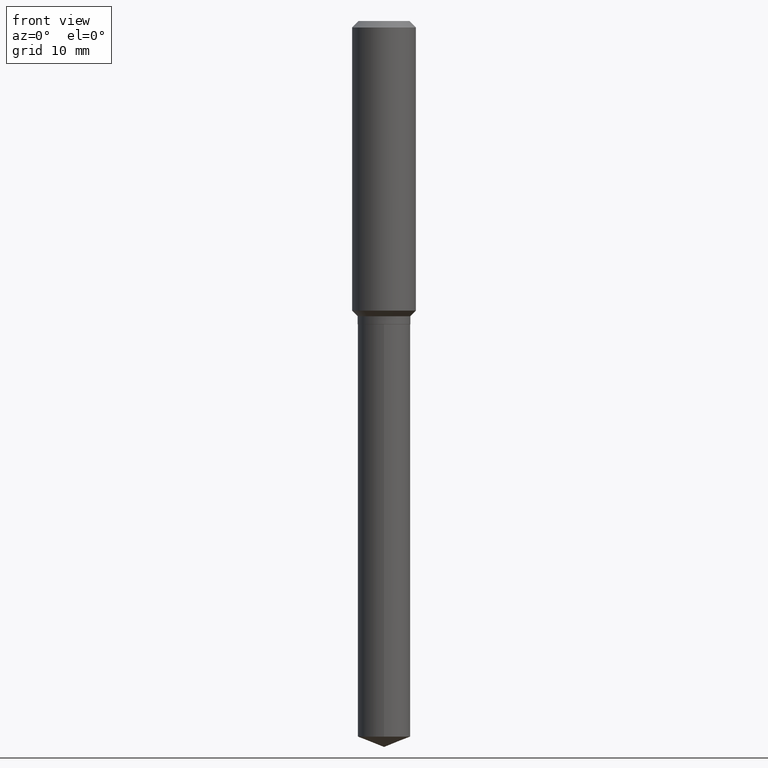
[diagram: clean part render]
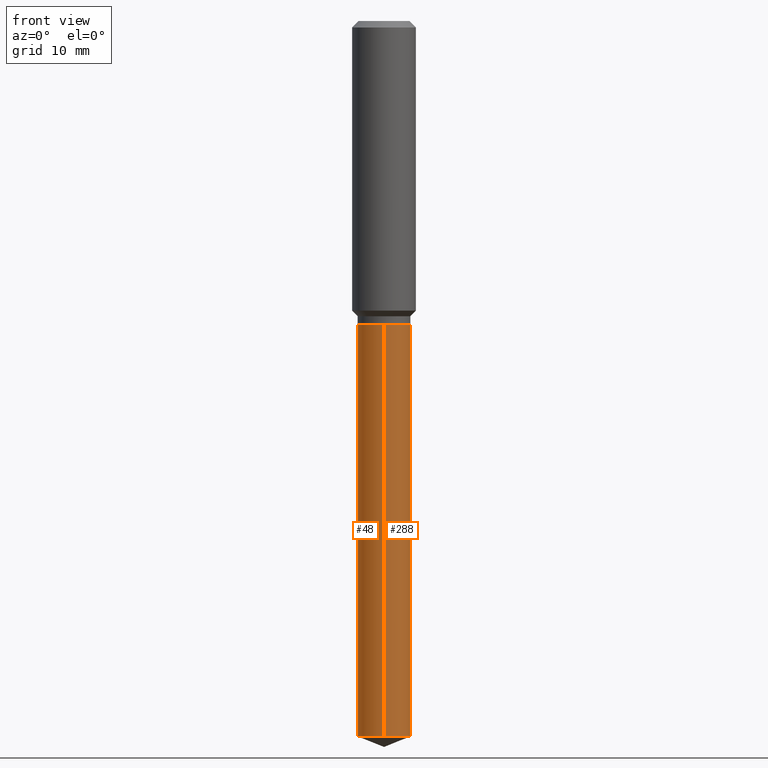
[diagram: same view with one multi-face feature highlighted, each face labeled with its STEP entity id]
A machine part, front view. The highlighted faces form ONE feature: a constant-radius fillet chain: 2 tangent blend faces with common blend radius 3.2995 mm. The faces share edges in the B-rep.
Their STEP definitions:
[1] entity #48 (Cylinder):
#7 = DIRECTION ( 'NONE',  ( -6.982962677686266711E-15, -1.000000000000000000, 4.206078512185163024E-15 ) ) ;
#10 = CARTESIAN_POINT ( 'NONE',  ( 8.636895204888756540E-29, -1.233144730051183123E-14, -3.531831029217620266 ) ) ;
#38 = DIRECTION ( 'NONE',  ( -2.445425864037539356E-29, 3.491542834442619101E-15, 1.000000000000000000 ) ) ;
#43 = DIRECTION ( 'NONE',  ( -6.982962677686266711E-15, -1.000000000000000000, 4.206078512185163024E-15 ) ) ;
#44 = AXIS2_PLACEMENT_3D ( 'NONE', #332, #248, #43 ) ;
#48 = ADVANCED_FACE ( 'NONE', ( #53 ), #173, .T. ) ;
#53 = FACE_OUTER_BOUND ( 'NONE', #486, .T. ) ;
#62 = DIRECTION ( 'NONE',  ( -6.982962677686266711E-15, -1.000000000000000000, 4.206078512185163024E-15 ) ) ;
#82 = ORIENTED_EDGE ( 'NONE', *, *, #125, .F. ) ;
#89 = DIRECTION ( 'NONE',  ( -2.445425864037539637E-29, 3.491542834442619495E-15, 1.000000000000000000 ) ) ;
#92 = AXIS2_PLACEMENT_3D ( 'NONE', #10, #207, #7 ) ;
#114 = VERTEX_POINT ( 'NONE', #270 ) ;
#116 = VECTOR ( 'NONE', #379, 39.37007874015748143 ) ;
#125 = EDGE_CURVE ( 'NONE', #114, #382, #258, .T. ) ;
#137 = AXIS2_PLACEMENT_3D ( 'NONE', #215, #89, #62 ) ;
#173 = CYLINDRICAL_SURFACE ( 'NONE', #44, 0.1298999999999999877 ) ;
#182 = VECTOR ( 'NONE', #38, 39.37007874015748143 ) ;
#200 = VERTEX_POINT ( 'NONE', #337 ) ;
#204 = LINE ( 'NONE', #427, #182 ) ;
#207 = DIRECTION ( 'NONE',  ( -2.445425864037539637E-29, 3.491542834442619495E-15, 1.000000000000000000 ) ) ;
#213 = VERTEX_POINT ( 'NONE', #224 ) ;
#215 = CARTESIAN_POINT ( 'NONE',  ( 3.659399521575438742E-29, -5.224652675444883351E-15, -1.496400000000000174 ) ) ;
#224 = CARTESIAN_POINT ( 'NONE',  ( -9.070868518314093100E-16, -0.1299000000000052057, -1.496399999999999730 ) ) ;
#248 = DIRECTION ( 'NONE',  ( -2.445425864037539637E-29, 3.491542834442619495E-15, 1.000000000000000000 ) ) ;
#258 = LINE ( 'NONE', #354, #116 ) ;
#262 = ORIENTED_EDGE ( 'NONE', *, *, #426, .F. ) ;
#270 = CARTESIAN_POINT ( 'NONE',  ( 9.229950137524560399E-16, 0.1298999999999876365, -3.531831029217620710 ) ) ;
#308 = CIRCLE ( 'NONE', #137, 0.1298999999999999877 ) ;
#332 = CARTESIAN_POINT ( 'NONE',  ( 3.659399521575438742E-29, -5.224652675444883351E-15, -1.496400000000000174 ) ) ;
#335 = ORIENTED_EDGE ( 'NONE', *, *, #340, .T. ) ;
#337 = CARTESIAN_POINT ( 'NONE',  ( -9.070868518313592174E-16, -0.1299000000000122557, -3.531831029217619822 ) ) ;
#340 = EDGE_CURVE ( 'NONE', #200, #213, #204, .T. ) ;
#341 = EDGE_CURVE ( 'NONE', #114, #200, #423, .T. ) ;
#354 = CARTESIAN_POINT ( 'NONE',  ( 9.229950137524065389E-16, 0.1298999999999947697, -1.496400000000000841 ) ) ;
#379 = DIRECTION ( 'NONE',  ( -2.445425864037539356E-29, 3.491542834442619101E-15, 1.000000000000000000 ) ) ;
#382 = VERTEX_POINT ( 'NONE', #462 ) ;
#423 = CIRCLE ( 'NONE', #92, 0.1298999999999999877 ) ;
#426 = EDGE_CURVE ( 'NONE', #382, #213, #308, .T. ) ;
#427 = CARTESIAN_POINT ( 'NONE',  ( -9.070868518314093100E-16, -0.1299000000000052057, -1.496399999999999730 ) ) ;
#458 = ORIENTED_EDGE ( 'NONE', *, *, #341, .T. ) ;
#462 = CARTESIAN_POINT ( 'NONE',  ( 9.229950137524566315E-16, 0.1298999999999947697, -1.496400000000000841 ) ) ;
#486 = EDGE_LOOP ( 'NONE', ( #82, #458, #335, #262 ) ) ;
[2] entity #288 (Cylinder):
#2 = CARTESIAN_POINT ( 'NONE',  ( 8.636895204888756540E-29, -1.233144730051183123E-14, -3.531831029217620266 ) ) ;
#20 = ORIENTED_EDGE ( 'NONE', *, *, #125, .T. ) ;
#36 = ORIENTED_EDGE ( 'NONE', *, *, #358, .F. ) ;
#38 = DIRECTION ( 'NONE',  ( -2.445425864037539356E-29, 3.491542834442619101E-15, 1.000000000000000000 ) ) ;
#49 = DIRECTION ( 'NONE',  ( -2.445425864037539637E-29, 3.491542834442619495E-15, 1.000000000000000000 ) ) ;
#74 = EDGE_LOOP ( 'NONE', ( #306, #20, #36, #99 ) ) ;
#78 = DIRECTION ( 'NONE',  ( -2.445425864037539637E-29, 3.491542834442619495E-15, 1.000000000000000000 ) ) ;
#86 = DIRECTION ( 'NONE',  ( -6.982962677686266711E-15, -1.000000000000000000, 4.206078512185163024E-15 ) ) ;
#99 = ORIENTED_EDGE ( 'NONE', *, *, #340, .F. ) ;
#109 = DIRECTION ( 'NONE',  ( -6.982962677686266711E-15, -1.000000000000000000, 4.206078512185163024E-15 ) ) ;
#114 = VERTEX_POINT ( 'NONE', #270 ) ;
#116 = VECTOR ( 'NONE', #379, 39.37007874015748143 ) ;
#120 = EDGE_CURVE ( 'NONE', #200, #114, #136, .T. ) ;
#125 = EDGE_CURVE ( 'NONE', #114, #382, #258, .T. ) ;
#136 = CIRCLE ( 'NONE', #342, 0.1298999999999999877 ) ;
#160 = AXIS2_PLACEMENT_3D ( 'NONE', #468, #49, #243 ) ;
#167 = CARTESIAN_POINT ( 'NONE',  ( 3.659399521575438742E-29, -5.224652675444883351E-15, -1.496400000000000174 ) ) ;
#182 = VECTOR ( 'NONE', #38, 39.37007874015748143 ) ;
#200 = VERTEX_POINT ( 'NONE', #337 ) ;
#204 = LINE ( 'NONE', #427, #182 ) ;
#213 = VERTEX_POINT ( 'NONE', #224 ) ;
#224 = CARTESIAN_POINT ( 'NONE',  ( -9.070868518314093100E-16, -0.1299000000000052057, -1.496399999999999730 ) ) ;
#243 = DIRECTION ( 'NONE',  ( -6.982962677686266711E-15, -1.000000000000000000, 4.206078512185163024E-15 ) ) ;
#258 = LINE ( 'NONE', #354, #116 ) ;
#270 = CARTESIAN_POINT ( 'NONE',  ( 9.229950137524560399E-16, 0.1298999999999876365, -3.531831029217620710 ) ) ;
#274 = FACE_OUTER_BOUND ( 'NONE', #74, .T. ) ;
#288 = ADVANCED_FACE ( 'NONE', ( #274 ), #433, .T. ) ;
#306 = ORIENTED_EDGE ( 'NONE', *, *, #120, .T. ) ;
#318 = DIRECTION ( 'NONE',  ( -2.445425864037539637E-29, 3.491542834442619495E-15, 1.000000000000000000 ) ) ;
#337 = CARTESIAN_POINT ( 'NONE',  ( -9.070868518313592174E-16, -0.1299000000000122557, -3.531831029217619822 ) ) ;
#340 = EDGE_CURVE ( 'NONE', #200, #213, #204, .T. ) ;
#342 = AXIS2_PLACEMENT_3D ( 'NONE', #2, #78, #109 ) ;
#354 = CARTESIAN_POINT ( 'NONE',  ( 9.229950137524065389E-16, 0.1298999999999947697, -1.496400000000000841 ) ) ;
#358 = EDGE_CURVE ( 'NONE', #213, #382, #436, .T. ) ;
#379 = DIRECTION ( 'NONE',  ( -2.445425864037539356E-29, 3.491542834442619101E-15, 1.000000000000000000 ) ) ;
#382 = VERTEX_POINT ( 'NONE', #462 ) ;
#407 = AXIS2_PLACEMENT_3D ( 'NONE', #167, #318, #86 ) ;
#427 = CARTESIAN_POINT ( 'NONE',  ( -9.070868518314093100E-16, -0.1299000000000052057, -1.496399999999999730 ) ) ;
#433 = CYLINDRICAL_SURFACE ( 'NONE', #160, 0.1298999999999999877 ) ;
#436 = CIRCLE ( 'NONE', #407, 0.1298999999999999877 ) ;
#462 = CARTESIAN_POINT ( 'NONE',  ( 9.229950137524566315E-16, 0.1298999999999947697, -1.496400000000000841 ) ) ;
#468 = CARTESIAN_POINT ( 'NONE',  ( 3.659399521575438742E-29, -5.224652675444883351E-15, -1.496400000000000174 ) ) ;